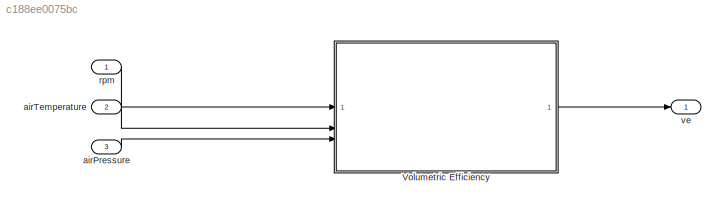
MODEL slx_c188ee0075bc
KIND model
CONFIG AbsTol = auto
CONFIG EnableMultiTasking = off
CONFIG FixedStep = auto
CONFIG MaxStep = auto
CONFIG MinStep = auto
CONFIG RelTol = 1e-3
CONFIG SampleTimeConstraint = Unconstrained
CONFIG SolverName = VariableStepAuto
CONFIG StartTime = 0.0
CONFIG StopTime = 10.0
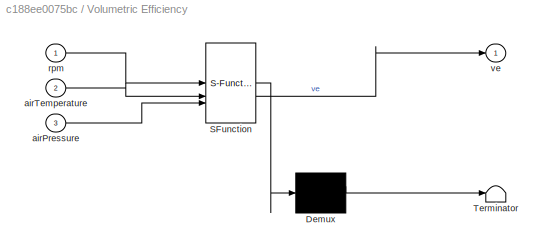
BLOCK [SubSystem] Volumetric Efficiency
  Description = Calculate the Volumetric Efficiency considering the current RPM and air pressure and temperature from engine output air flow
  ErrorFcn = Stateflow.Translate.translate
  PermitHierarchicalResolution = ExplicitOnly
  RTWFcnName = calculateVolumetricEfficiency
  RTWFcnNameOpts = User specified
  RTWFileName = calculateVolumetricEfficiency
  RTWFileNameOpts = User specified
  RTWSystemCode = Reusable function
  SFBlockType = MATLAB Function
  TreatAsAtomicUnit = on
BLOCK [Demux] Volumetric Efficiency/ Demux 
  Outputs = 1
BLOCK [S-Function] Volumetric Efficiency/ SFunction 
  EnableBusSupport = on
  FunctionName = sf_sfun
  PortCounts = [3 2]
  SFcnIsStateOwnerBlock = off
  SFunctionDeploymentMode = off
  Tag = Stateflow S-Function 1
BLOCK [Terminator] Volumetric Efficiency/ Terminator 
BLOCK [Inport] Volumetric Efficiency/airPressure
  Port = 3
BLOCK [Inport] Volumetric Efficiency/airTemperature
  Port = 2
BLOCK [Inport] Volumetric Efficiency/rpm
BLOCK [Outport] Volumetric Efficiency/ve
BLOCK [Inport] airPressure
  Port = 3
BLOCK [Inport] airTemperature
  Port = 2
BLOCK [Inport] rpm
BLOCK [Outport] ve
LINE Volumetric Efficiency:1 -> ve:1
LINE airPressure:1 -> Volumetric Efficiency:3
LINE airTemperature:1 -> Volumetric Efficiency:2
LINE rpm:1 -> Volumetric Efficiency:1
CHART Volumetric Efficiency states=1 transitions=1
  STATE_LABEL 'eML_blk_kernel()'
  STATE_LABEL 'SCRIPT:\nfunction ve = calculateVolumetricEfficiency(rpm,airTemperature,airPressure)\n    % FUNCTION Calculate Volumetric Efficiency\n    %\n    % $$ve_{teoric} = V_t \\left(\\frac{P_{MAP}}{R \\cdot T_{MAP}}\\right)$$\n    % \n    % Args:\n    %   rpm: Motor RPM [RPM]\n    %   airTemperature: Air Temperature [K]\n    %   airPressure: Air Pressure [kPa]\n    %\n    % Returns:\n    %   ve: Volumetric Efficiency\n   ...<+875ch>'
CHART  states=0 transitions=0
